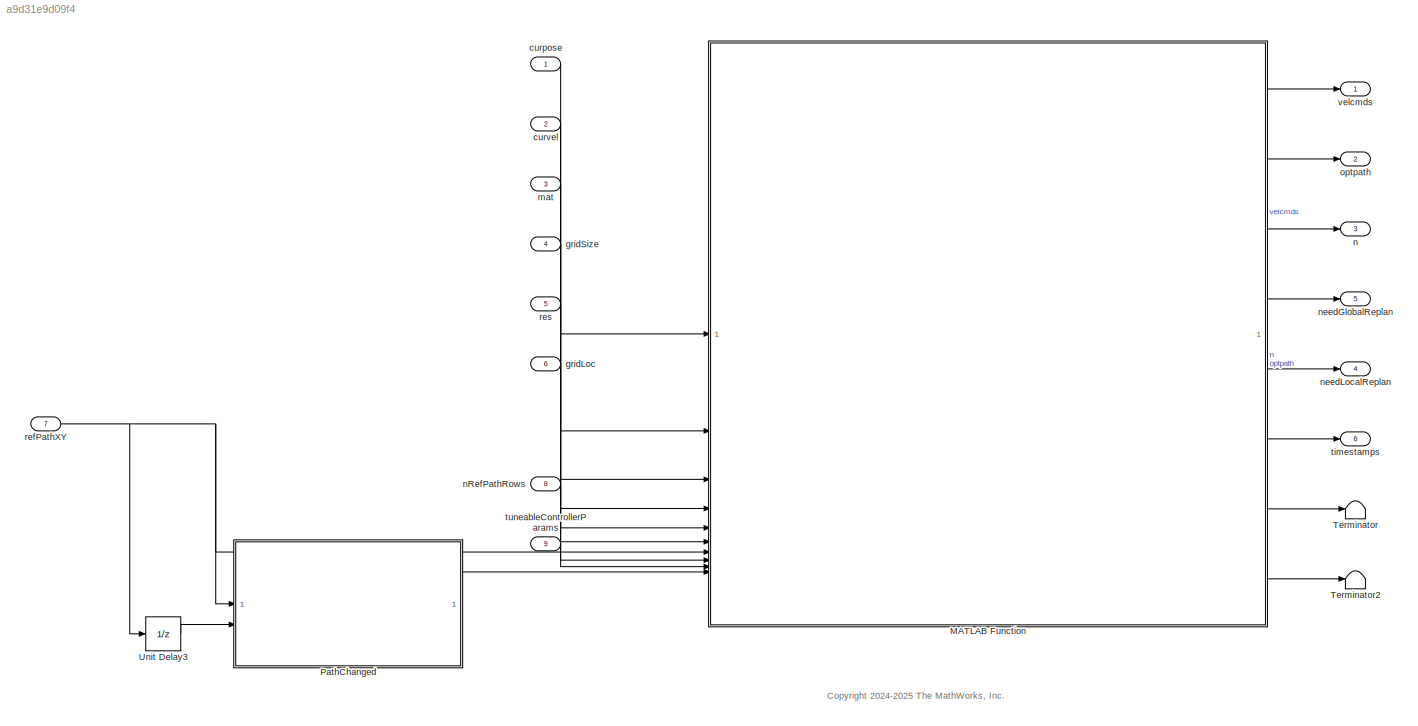
MODEL slx_a9d31e9d09f4
KIND model
CONFIG AbsTol = auto
CONFIG EnableMultiTasking = off
CONFIG FixedStep = auto
CONFIG MaxStep = auto
CONFIG MinStep = auto
CONFIG RelTol = 1e-3
CONFIG SampleTimeConstraint = Unconstrained
CONFIG SolverName = FixedStepDiscrete
CONFIG StartTime = 0.0
CONFIG StopTime = Inf
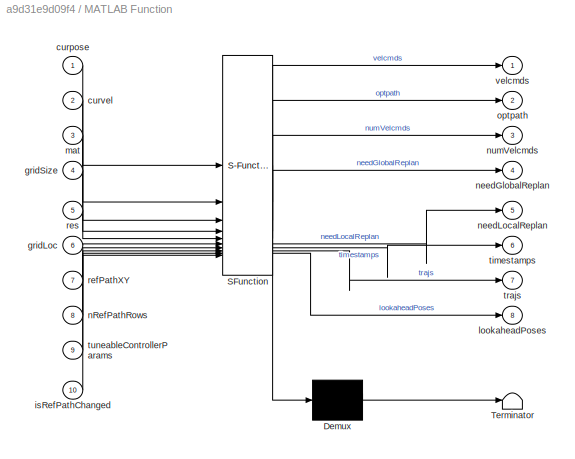
BLOCK [SubSystem] MATLAB Function
  ErrorFcn = Stateflow.Translate.translate
  LibrarySourceBlock = simulink/User-Defined\nFunctions/MATLAB Function
  PermitHierarchicalResolution = ExplicitOnly
  SFBlockType = MATLAB Function
  TreatAsAtomicUnit = on
BLOCK [Demux] MATLAB Function/ Demux 
  Outputs = 1
BLOCK [S-Function] MATLAB Function/ SFunction 
  EnableBusSupport = on
  FunctionName = sf_sfun
  Parameters = length,maxOutputLength,width
  PortCounts = [10 9]
  SFcnIsStateOwnerBlock = off
  SFunctionDeploymentMode = off
  Tag = Stateflow S-Function 2
BLOCK [Terminator] MATLAB Function/ Terminator 
BLOCK [Inport] MATLAB Function/curpose
BLOCK [Inport] MATLAB Function/curvel
  Port = 2
BLOCK [Inport] MATLAB Function/gridLoc
  Port = 6
BLOCK [Inport] MATLAB Function/gridSize
  Port = 4
BLOCK [Inport] MATLAB Function/isRefPathChanged
  Port = 10
BLOCK [Outport] MATLAB Function/lookaheadPoses
  Port = 8
BLOCK [Inport] MATLAB Function/mat
  Port = 3
BLOCK [Inport] MATLAB Function/nRefPathRows
  Port = 8
BLOCK [Outport] MATLAB Function/needGlobalReplan
  Port = 4
BLOCK [Outport] MATLAB Function/needLocalReplan
  Port = 5
BLOCK [Outport] MATLAB Function/numVelcmds
  Port = 3
BLOCK [Outport] MATLAB Function/optpath
  Port = 2
BLOCK [Inport] MATLAB Function/refPathXY
  Port = 7
BLOCK [Inport] MATLAB Function/res
  Port = 5
BLOCK [Outport] MATLAB Function/timestamps
  Port = 6
BLOCK [Outport] MATLAB Function/trajs
  Port = 7
BLOCK [Inport] MATLAB Function/tuneableControllerParams
  Port = 9
BLOCK [Outport] MATLAB Function/velcmds
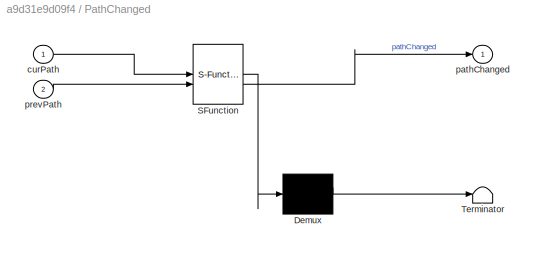
BLOCK [SubSystem] PathChanged
  ErrorFcn = Stateflow.Translate.translate
  PermitHierarchicalResolution = ExplicitOnly
  SFBlockType = MATLAB Function
  TreatAsAtomicUnit = on
BLOCK [Demux] PathChanged/ Demux 
  Outputs = 1
BLOCK [S-Function] PathChanged/ SFunction 
  EnableBusSupport = on
  FunctionName = sf_sfun
  PortCounts = [2 2]
  SFcnIsStateOwnerBlock = off
  SFunctionDeploymentMode = off
  Tag = Stateflow S-Function 1
BLOCK [Terminator] PathChanged/ Terminator 
BLOCK [Inport] PathChanged/curPath
BLOCK [Outport] PathChanged/pathChanged
BLOCK [Inport] PathChanged/prevPath
  Port = 2
BLOCK [Terminator] Terminator
BLOCK [Terminator] Terminator2
BLOCK [UnitDelay] Unit Delay3
  HasFrameUpgradeWarning = on
  SampleTime = -1
BLOCK [Inport] curpose
  OutDataTypeStr = double
  PortDimensions = [1 3]
  SamplingMode = Sample based
  SignalType = real
BLOCK [Inport] curvel
  OutDataTypeStr = double
  Port = 2
  PortDimensions = [1 2]
  SamplingMode = Sample based
  SignalType = real
BLOCK [Inport] gridLoc
  OutDataTypeStr = double
  Port = 6
  PortDimensions = [1 2]
  SamplingMode = Sample based
  SignalType = real
BLOCK [Inport] gridSize
  Port = 4
  PortDimensions = [1 2]
BLOCK [Inport] mat
  Interpolate = off
  OutDataTypeStr = boolean
  Port = 3
  PortDimensions = [1201 1201]
  SamplingMode = Sample based
  SignalType = real
  VarSizeSig = Yes
BLOCK [Outport] n
  OutDataTypeStr = double
  Port = 3
  PortDimensions = 1
  SamplingMode = Sample based
  SignalType = real
BLOCK [Inport] nRefPathRows
  OutDataTypeStr = double
  Port = 8
  PortDimensions = 1
  SamplingMode = Sample based
  SignalType = real
BLOCK [Outport] needGlobalReplan
  OutDataTypeStr = boolean
  Port = 5
  PortDimensions = 1
  SamplingMode = Sample based
  SignalType = real
BLOCK [Outport] needLocalReplan
  OutDataTypeStr = boolean
  Port = 4
  PortDimensions = 1
  SamplingMode = Sample based
  SignalType = real
BLOCK [Outport] optpath
  OutDataTypeStr = double
  Port = 2
  PortDimensions = [maxLocalPathLen 3]
  SamplingMode = Sample based
  SignalType = real
BLOCK [Inport] refPathXY
  NameLocation = top
  OutDataTypeStr = double
  Port = 7
  PortDimensions = [maxRefPathLen 3]
  SamplingMode = Sample based
  SignalType = real
BLOCK [Inport] res
  OutDataTypeStr = double
  Port = 5
  PortDimensions = 1
  SamplingMode = Sample based
  SignalType = real
BLOCK [Outport] timestamps
  Port = 6
  PortDimensions = [maxLocalPathLen 1]
BLOCK [Inport] tuneableControllerParams
  BusOutputAsStruct = on
  OutDataTypeStr = Bus: controller_bus
  Port = 9
BLOCK [Outport] velcmds
  OutDataTypeStr = double
  PortDimensions = [maxLocalPathLen 2]
  SamplingMode = Sample based
  SignalType = real
ANNOTATION (root): <copyright redacted>
LINE MATLAB Function:1 -> velcmds:1
LINE MATLAB Function:2 -> optpath:1
LINE MATLAB Function:3 -> n:1
LINE MATLAB Function:4 -> needGlobalReplan:1
LINE MATLAB Function:5 -> needLocalReplan:1
LINE MATLAB Function:6 -> timestamps:1
LINE MATLAB Function:7 -> Terminator:1
LINE MATLAB Function:8 -> Terminator2:1
LINE PathChanged:1 -> MATLAB Function:10
LINE Unit Delay3:1 -> PathChanged:2
LINE curpose:1 -> MATLAB Function:1
LINE curvel:1 -> MATLAB Function:2
LINE gridLoc:1 -> MATLAB Function:6
LINE gridSize:1 -> MATLAB Function:4
LINE mat:1 -> MATLAB Function:3
LINE nRefPathRows:1 -> MATLAB Function:8
NET refPathXY:1 -> MATLAB Function:7, PathChanged:1, Unit Delay3:1
LINE res:1 -> MATLAB Function:5
LINE tuneableControllerParams:1 -> MATLAB Function:9
note: NET lines group one-source signal fan-out (src -> all destinations, sorted); 1:1 wires keep LINE
CHART PathChanged states=1 transitions=1
  STATE_LABEL 'eML_blk_kernel()'
  STATE_LABEL 'SCRIPT:\nfunction pathChanged = PathChanged(curPath, prevPath)\n%PathChanged Return true if new path has been provided else return false\n    \npathChanged = false;\nif ~isequal(curPath,prevPath)\n    pathChanged = true;\nend\nend'
CHART MATLAB Function states=1 transitions=1
  STATE_LABEL 'eML_blk_kernel()'
  STATE_LABEL 'SCRIPT:\nfunction [velcmds,optpath,numVelcmds,needGlobalReplan,needLocalReplan, timestamps, trajs,lookaheadPoses] = mppiControllerBlock(curpose, curvel, mat, gridSize, res, ...\n    gridLoc, refPathXY, nRefPathRows, tuneableControllerParams, isRefPathChanged, ...\n    length, width, maxOutputLength)\n    \n    velcmds = nan(maxOutputLength,2);\n    optpath = nan(maxOutputLength,3);\n    timestamps = nan(...<+919ch>'
CHART  states=0 transitions=0
CHART  states=0 transitions=0
